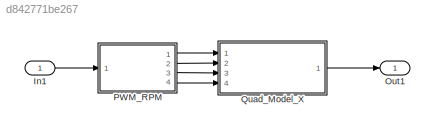
MODEL slx_d842771be267
KIND model
CONFIG AbsTol = auto
CONFIG FixedStep = auto
CONFIG MaxStep = auto
CONFIG MinStep = auto
CONFIG RelTol = 1e-3
CONFIG SampleTimeConstraint = Unconstrained
CONFIG Solver = ode45
CONFIG SolverMode = Auto
CONFIG SolverName = ode45
CONFIG StartTime = 0.0
CONFIG StopTime = 10.0
BLOCK [Inport] In1
  IconDisplay = Port number
BLOCK [Outport] Out1
  IconDisplay = Port number
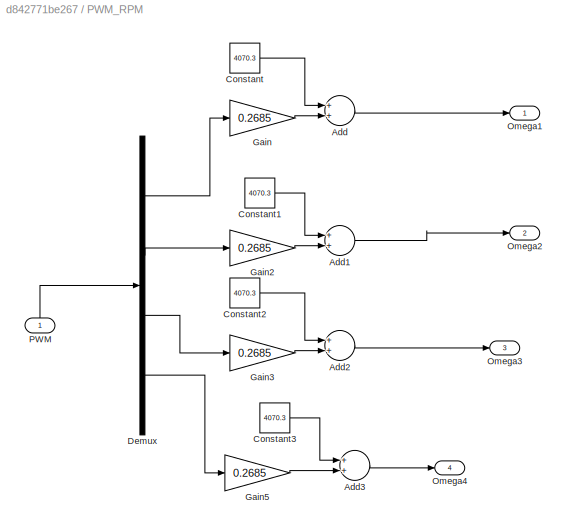
BLOCK [SubSystem] PWM_RPM
  Ports = [1, 4]
  RequestExecContextInheritance = off
  Variant = off
BLOCK [Sum] PWM_RPM/Add
  InputSameDT = off
  OutDataTypeStr = Inherit: Inherit via internal rule
  Ports = [2, 1]
  SaturateOnIntegerOverflow = off
BLOCK [Sum] PWM_RPM/Add1
  InputSameDT = off
  OutDataTypeStr = Inherit: Inherit via internal rule
  Ports = [2, 1]
  SaturateOnIntegerOverflow = off
BLOCK [Sum] PWM_RPM/Add2
  InputSameDT = off
  OutDataTypeStr = Inherit: Inherit via internal rule
  Ports = [2, 1]
  SaturateOnIntegerOverflow = off
BLOCK [Sum] PWM_RPM/Add3
  InputSameDT = off
  OutDataTypeStr = Inherit: Inherit via internal rule
  Ports = [2, 1]
  SaturateOnIntegerOverflow = off
BLOCK [Constant] PWM_RPM/Constant
  Value = 4070.3
BLOCK [Constant] PWM_RPM/Constant1
  Value = 4070.3
BLOCK [Constant] PWM_RPM/Constant2
  Value = 4070.3
BLOCK [Constant] PWM_RPM/Constant3
  Value = 4070.3
BLOCK [Demux] PWM_RPM/Demux
  DisplayOption = bar
  Ports = [1, 4]
BLOCK [Gain] PWM_RPM/Gain
  Gain = 0.2685
  OutDataTypeStr = Inherit: Inherit via internal rule
  ParamDataTypeStr = Inherit: Inherit via internal rule
  SaturateOnIntegerOverflow = off
BLOCK [Gain] PWM_RPM/Gain2
  Gain = 0.2685
  OutDataTypeStr = Inherit: Inherit via internal rule
  ParamDataTypeStr = Inherit: Inherit via internal rule
  SaturateOnIntegerOverflow = off
BLOCK [Gain] PWM_RPM/Gain3
  Gain = 0.2685
  OutDataTypeStr = Inherit: Inherit via internal rule
  ParamDataTypeStr = Inherit: Inherit via internal rule
  SaturateOnIntegerOverflow = off
BLOCK [Gain] PWM_RPM/Gain5
  Gain = 0.2685
  OutDataTypeStr = Inherit: Inherit via internal rule
  ParamDataTypeStr = Inherit: Inherit via internal rule
  SaturateOnIntegerOverflow = off
BLOCK [Outport] PWM_RPM/Omega1
  IconDisplay = Port number
BLOCK [Outport] PWM_RPM/Omega2
  IconDisplay = Port number
  Port = 2
BLOCK [Outport] PWM_RPM/Omega3
  IconDisplay = Port number
  Port = 3
BLOCK [Outport] PWM_RPM/Omega4
  IconDisplay = Port number
  Port = 4
BLOCK [Inport] PWM_RPM/PWM
  IconDisplay = Port number
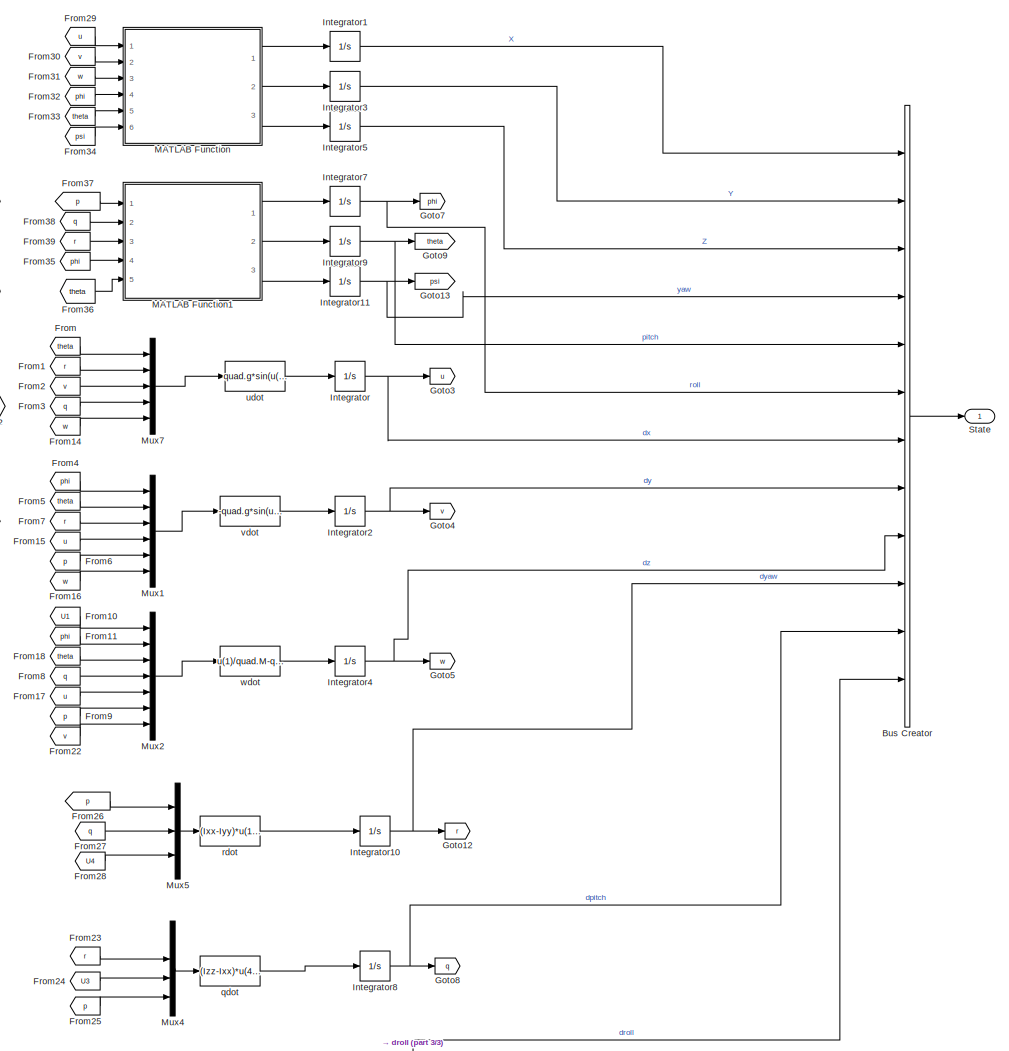
[diagram: Quad_Model_X - part 1/3, right side, full height]
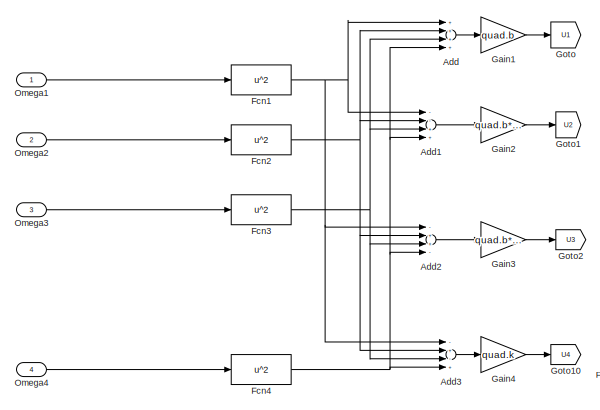
[diagram: Quad_Model_X - part 2/3, top left region]
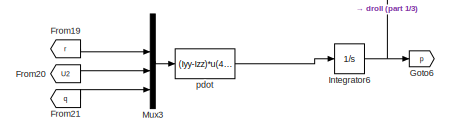
[diagram: Quad_Model_X - part 3/3, bottom center region]
BLOCK [SubSystem] Quad_Model_X
  Ports = [4, 1]
  RequestExecContextInheritance = off
  Variant = off
BLOCK [Sum] Quad_Model_X/Add
  InputSameDT = off
  Inputs = ++++
  OutDataTypeStr = Inherit: Inherit via internal rule
  Ports = [4, 1]
  SaturateOnIntegerOverflow = off
BLOCK [Sum] Quad_Model_X/Add1
  InputSameDT = off
  Inputs = --++
  OutDataTypeStr = Inherit: Inherit via internal rule
  Ports = [4, 1]
  SaturateOnIntegerOverflow = off
BLOCK [Sum] Quad_Model_X/Add2
  InputSameDT = off
  Inputs = -++-
  OutDataTypeStr = Inherit: Inherit via internal rule
  Ports = [4, 1]
  SaturateOnIntegerOverflow = off
BLOCK [Sum] Quad_Model_X/Add3
  InputSameDT = off
  Inputs = -+-+
  OutDataTypeStr = Inherit: Inherit via internal rule
  Ports = [4, 1]
  SaturateOnIntegerOverflow = off
BLOCK [BusCreator] Quad_Model_X/Bus Creator
  DisplayOption = bar
  InheritFromInputs = on
  Inputs = 12
  Ports = [12, 1]
BLOCK [Fcn] Quad_Model_X/Fcn1
  Expr = u^2
BLOCK [Fcn] Quad_Model_X/Fcn2
  Expr = u^2
BLOCK [Fcn] Quad_Model_X/Fcn3
  Expr = u^2
BLOCK [Fcn] Quad_Model_X/Fcn4
  Expr = u^2
BLOCK [From] Quad_Model_X/From
  GotoTag = theta
BLOCK [From] Quad_Model_X/From1
  GotoTag = r
BLOCK [From] Quad_Model_X/From10
  GotoTag = U1
BLOCK [From] Quad_Model_X/From11
  GotoTag = phi
BLOCK [From] Quad_Model_X/From14
  GotoTag = w
BLOCK [From] Quad_Model_X/From15
  GotoTag = u
BLOCK [From] Quad_Model_X/From16
  GotoTag = w
BLOCK [From] Quad_Model_X/From17
  GotoTag = u
BLOCK [From] Quad_Model_X/From18
  GotoTag = theta
BLOCK [From] Quad_Model_X/From19
  GotoTag = r
BLOCK [From] Quad_Model_X/From2
  GotoTag = v
BLOCK [From] Quad_Model_X/From20
  GotoTag = U2
BLOCK [From] Quad_Model_X/From21
  GotoTag = q
BLOCK [From] Quad_Model_X/From22
  GotoTag = v
BLOCK [From] Quad_Model_X/From23
  GotoTag = r
BLOCK [From] Quad_Model_X/From24
  GotoTag = U3
BLOCK [From] Quad_Model_X/From25
  GotoTag = p
BLOCK [From] Quad_Model_X/From26
  GotoTag = p
BLOCK [From] Quad_Model_X/From27
  GotoTag = q
BLOCK [From] Quad_Model_X/From28
  GotoTag = U4
BLOCK [From] Quad_Model_X/From29
  GotoTag = u
BLOCK [From] Quad_Model_X/From3
  GotoTag = q
BLOCK [From] Quad_Model_X/From30
  GotoTag = v
BLOCK [From] Quad_Model_X/From31
  GotoTag = w
BLOCK [From] Quad_Model_X/From32
  GotoTag = phi
BLOCK [From] Quad_Model_X/From33
  GotoTag = theta
BLOCK [From] Quad_Model_X/From34
  GotoTag = psi
BLOCK [From] Quad_Model_X/From35
  GotoTag = phi
BLOCK [From] Quad_Model_X/From36
  GotoTag = theta
BLOCK [From] Quad_Model_X/From37
  GotoTag = p
BLOCK [From] Quad_Model_X/From38
  GotoTag = q
BLOCK [From] Quad_Model_X/From39
  GotoTag = r
BLOCK [From] Quad_Model_X/From4
  GotoTag = phi
BLOCK [From] Quad_Model_X/From5
  GotoTag = theta
BLOCK [From] Quad_Model_X/From6
  GotoTag = p
BLOCK [From] Quad_Model_X/From7
  GotoTag = r
BLOCK [From] Quad_Model_X/From8
  GotoTag = q
BLOCK [From] Quad_Model_X/From9
  GotoTag = p
BLOCK [Gain] Quad_Model_X/Gain1
  Gain = quad.b
  OutDataTypeStr = Inherit: Inherit via internal rule
  ParamDataTypeStr = Inherit: Inherit via internal rule
  SaturateOnIntegerOverflow = off
BLOCK [Gain] Quad_Model_X/Gain2
  Gain = quad.b*quad.d*sin(pi/4)
  OutDataTypeStr = Inherit: Inherit via internal rule
  ParamDataTypeStr = Inherit: Inherit via internal rule
  SaturateOnIntegerOverflow = off
BLOCK [Gain] Quad_Model_X/Gain3
  Gain = quad.b*quad.d*sin(pi/4)
  OutDataTypeStr = Inherit: Inherit via internal rule
  ParamDataTypeStr = Inherit: Inherit via internal rule
  SaturateOnIntegerOverflow = off
BLOCK [Gain] Quad_Model_X/Gain4
  Gain = quad.k
  OutDataTypeStr = Inherit: Inherit via internal rule
  ParamDataTypeStr = Inherit: Inherit via internal rule
  SaturateOnIntegerOverflow = off
BLOCK [Goto] Quad_Model_X/Goto
  GotoTag = U1
BLOCK [Goto] Quad_Model_X/Goto1
  GotoTag = U2
BLOCK [Goto] Quad_Model_X/Goto10
  GotoTag = U4
BLOCK [Goto] Quad_Model_X/Goto12
  GotoTag = r
BLOCK [Goto] Quad_Model_X/Goto13
  GotoTag = psi
BLOCK [Goto] Quad_Model_X/Goto2
  GotoTag = U3
BLOCK [Goto] Quad_Model_X/Goto3
  GotoTag = u
BLOCK [Goto] Quad_Model_X/Goto4
  GotoTag = v
BLOCK [Goto] Quad_Model_X/Goto5
  GotoTag = w
BLOCK [Goto] Quad_Model_X/Goto6
  GotoTag = p
BLOCK [Goto] Quad_Model_X/Goto7
  GotoTag = phi
BLOCK [Goto] Quad_Model_X/Goto8
  GotoTag = q
BLOCK [Goto] Quad_Model_X/Goto9
  GotoTag = theta
BLOCK [Integrator] Quad_Model_X/Integrator
  Ports = [1, 1]
BLOCK [Integrator] Quad_Model_X/Integrator1
  Ports = [1, 1]
BLOCK [Integrator] Quad_Model_X/Integrator10
  Ports = [1, 1]
BLOCK [Integrator] Quad_Model_X/Integrator11
  Ports = [1, 1]
BLOCK [Integrator] Quad_Model_X/Integrator2
  Ports = [1, 1]
BLOCK [Integrator] Quad_Model_X/Integrator3
  Ports = [1, 1]
BLOCK [Integrator] Quad_Model_X/Integrator4
  Ports = [1, 1]
BLOCK [Integrator] Quad_Model_X/Integrator5
  Ports = [1, 1]
BLOCK [Integrator] Quad_Model_X/Integrator6
  Ports = [1, 1]
BLOCK [Integrator] Quad_Model_X/Integrator7
  Ports = [1, 1]
BLOCK [Integrator] Quad_Model_X/Integrator8
  Ports = [1, 1]
BLOCK [Integrator] Quad_Model_X/Integrator9
  Ports = [1, 1]
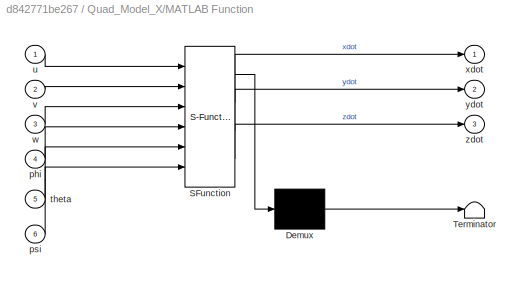
BLOCK [SubSystem] Quad_Model_X/MATLAB Function
  ErrorFcn = Stateflow.Translate.translate
  PermitHierarchicalResolution = ExplicitOnly
  Ports = [6, 3]
  RequestExecContextInheritance = off
  SFBlockType = MATLAB Function
  TreatAsAtomicUnit = on
  Variant = off
BLOCK [Demux] Quad_Model_X/MATLAB Function/ Demux 
  Outputs = 1
  Ports = [1, 1]
BLOCK [S-Function] Quad_Model_X/MATLAB Function/ SFunction 
  EnableBusSupport = off
  FunctionName = sf_sfun
  PortCounts = [6 4]
  Ports = [6, 4]
  SFunctionDeploymentMode = off
  Tag = Stateflow S-Function Quad_Model_X_backup 7
BLOCK [Terminator] Quad_Model_X/MATLAB Function/ Terminator 
BLOCK [Inport] Quad_Model_X/MATLAB Function/phi
  IconDisplay = Port number
  Port = 4
BLOCK [Inport] Quad_Model_X/MATLAB Function/psi
  IconDisplay = Port number
  Port = 6
BLOCK [Inport] Quad_Model_X/MATLAB Function/theta
  IconDisplay = Port number
  Port = 5
BLOCK [Inport] Quad_Model_X/MATLAB Function/u
  IconDisplay = Port number
BLOCK [Inport] Quad_Model_X/MATLAB Function/v
  IconDisplay = Port number
  Port = 2
BLOCK [Inport] Quad_Model_X/MATLAB Function/w
  IconDisplay = Port number
  Port = 3
BLOCK [Outport] Quad_Model_X/MATLAB Function/xdot
  IconDisplay = Port number
BLOCK [Outport] Quad_Model_X/MATLAB Function/ydot
  IconDisplay = Port number
  Port = 2
BLOCK [Outport] Quad_Model_X/MATLAB Function/zdot
  IconDisplay = Port number
  Port = 3
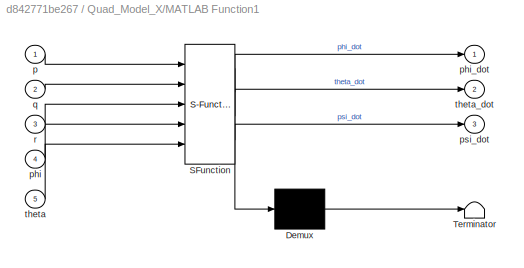
BLOCK [SubSystem] Quad_Model_X/MATLAB Function1
  ErrorFcn = Stateflow.Translate.translate
  PermitHierarchicalResolution = ExplicitOnly
  Ports = [5, 3]
  RequestExecContextInheritance = off
  SFBlockType = MATLAB Function
  TreatAsAtomicUnit = on
  Variant = off
BLOCK [Demux] Quad_Model_X/MATLAB Function1/ Demux 
  Outputs = 1
  Ports = [1, 1]
BLOCK [S-Function] Quad_Model_X/MATLAB Function1/ SFunction 
  EnableBusSupport = off
  FunctionName = sf_sfun
  PortCounts = [5 4]
  Ports = [5, 4]
  SFunctionDeploymentMode = off
  Tag = Stateflow S-Function Quad_Model_X_backup 8
BLOCK [Terminator] Quad_Model_X/MATLAB Function1/ Terminator 
BLOCK [Inport] Quad_Model_X/MATLAB Function1/p
  IconDisplay = Port number
BLOCK [Inport] Quad_Model_X/MATLAB Function1/phi
  IconDisplay = Port number
  Port = 4
BLOCK [Outport] Quad_Model_X/MATLAB Function1/phi_dot
  IconDisplay = Port number
BLOCK [Outport] Quad_Model_X/MATLAB Function1/psi_dot
  IconDisplay = Port number
  Port = 3
BLOCK [Inport] Quad_Model_X/MATLAB Function1/q
  IconDisplay = Port number
  Port = 2
BLOCK [Inport] Quad_Model_X/MATLAB Function1/r
  IconDisplay = Port number
  Port = 3
BLOCK [Inport] Quad_Model_X/MATLAB Function1/theta
  IconDisplay = Port number
  Port = 5
BLOCK [Outport] Quad_Model_X/MATLAB Function1/theta_dot
  IconDisplay = Port number
  Port = 2
BLOCK [Mux] Quad_Model_X/Mux1
  DisplayOption = bar
  Inputs = 6
  Ports = [6, 1]
BLOCK [Mux] Quad_Model_X/Mux2
  DisplayOption = bar
  Inputs = 7
  Ports = [7, 1]
BLOCK [Mux] Quad_Model_X/Mux3
  DisplayOption = bar
  Ports = [4, 1]
BLOCK [Mux] Quad_Model_X/Mux4
  DisplayOption = bar
  Ports = [4, 1]
BLOCK [Mux] Quad_Model_X/Mux5
  DisplayOption = bar
  Inputs = 3
  Ports = [3, 1]
BLOCK [Mux] Quad_Model_X/Mux7
  DisplayOption = bar
  Inputs = 5
  Ports = [5, 1]
BLOCK [Inport] Quad_Model_X/Omega1
  IconDisplay = Port number
BLOCK [Inport] Quad_Model_X/Omega2
  IconDisplay = Port number
  Port = 2
BLOCK [Inport] Quad_Model_X/Omega3
  IconDisplay = Port number
  Port = 3
BLOCK [Inport] Quad_Model_X/Omega4
  IconDisplay = Port number
  Port = 4
BLOCK [Outport] Quad_Model_X/State
  IconDisplay = Port number
BLOCK [Fcn] Quad_Model_X/pdot
  Expr = (Iyy-Izz)*u(4)*u(2)/Ixx+u(3)/Ixx
BLOCK [Fcn] Quad_Model_X/qdot
  Expr = (Izz-Ixx)*u(4)*u(2)/Iyy+u(3)/Iyy
BLOCK [Fcn] Quad_Model_X/rdot
  Expr = (Ixx-Iyy)*u(1)*u(2)/Izz+u(3)/Izz
BLOCK [Fcn] Quad_Model_X/udot 
  Expr = quad.g*sin(u(1))+u(2)*u(3)-u(4)*u(5)
BLOCK [Fcn] Quad_Model_X/vdot 
  Expr = -quad.g*sin(u(1))*cos(u(2))-u(3)*u(4)+u(5)*u(6)
BLOCK [Fcn] Quad_Model_X/wdot 
  Expr = u(1)/quad.M-quad.g*cos(u(2))*cos(u(3))+u(4)*u(5)-u(6)*u(7)
LINE In1:1 -> PWM_RPM:1
LINE PWM_RPM/Add1:1 -> PWM_RPM/Omega2:1
LINE PWM_RPM/Add2:1 -> PWM_RPM/Omega3:1
LINE PWM_RPM/Add3:1 -> PWM_RPM/Omega4:1
LINE PWM_RPM/Add:1 -> PWM_RPM/Omega1:1
LINE PWM_RPM/Constant1:1 -> PWM_RPM/Add1:1
LINE PWM_RPM/Constant2:1 -> PWM_RPM/Add2:1
LINE PWM_RPM/Constant3:1 -> PWM_RPM/Add3:1
LINE PWM_RPM/Constant:1 -> PWM_RPM/Add:1
LINE PWM_RPM/Demux:1 -> PWM_RPM/Gain:1
LINE PWM_RPM/Demux:2 -> PWM_RPM/Gain2:1
LINE PWM_RPM/Demux:3 -> PWM_RPM/Gain3:1
LINE PWM_RPM/Demux:4 -> PWM_RPM/Gain5:1
LINE PWM_RPM/Gain2:1 -> PWM_RPM/Add1:2
LINE PWM_RPM/Gain3:1 -> PWM_RPM/Add2:2
LINE PWM_RPM/Gain5:1 -> PWM_RPM/Add3:2
LINE PWM_RPM/Gain:1 -> PWM_RPM/Add:2
LINE PWM_RPM/PWM:1 -> PWM_RPM/Demux:1
LINE PWM_RPM:1 -> Quad_Model_X:1
LINE PWM_RPM:2 -> Quad_Model_X:2
LINE PWM_RPM:3 -> Quad_Model_X:3
LINE PWM_RPM:4 -> Quad_Model_X:4
LINE Quad_Model_X/Add1:1 -> Quad_Model_X/Gain2:1
LINE Quad_Model_X/Add2:1 -> Quad_Model_X/Gain3:1
LINE Quad_Model_X/Add3:1 -> Quad_Model_X/Gain4:1
LINE Quad_Model_X/Add:1 -> Quad_Model_X/Gain1:1
LINE Quad_Model_X/Bus Creator:1 -> Quad_Model_X/State:1
NET Quad_Model_X/Fcn1:1 -> Quad_Model_X/Add1:1, Quad_Model_X/Add2:1, Quad_Model_X/Add3:1, Quad_Model_X/Add:1
NET Quad_Model_X/Fcn2:1 -> Quad_Model_X/Add1:2, Quad_Model_X/Add2:2, Quad_Model_X/Add3:2, Quad_Model_X/Add:2
NET Quad_Model_X/Fcn3:1 -> Quad_Model_X/Add1:3, Quad_Model_X/Add2:3, Quad_Model_X/Add3:3, Quad_Model_X/Add:3
NET Quad_Model_X/Fcn4:1 -> Quad_Model_X/Add1:4, Quad_Model_X/Add2:4, Quad_Model_X/Add3:4, Quad_Model_X/Add:4
LINE Quad_Model_X/From10:1 -> Quad_Model_X/Mux2:1
LINE Quad_Model_X/From11:1 -> Quad_Model_X/Mux2:2
LINE Quad_Model_X/From14:1 -> Quad_Model_X/Mux7:5
LINE Quad_Model_X/From15:1 -> Quad_Model_X/Mux1:4
LINE Quad_Model_X/From16:1 -> Quad_Model_X/Mux1:6
LINE Quad_Model_X/From17:1 -> Quad_Model_X/Mux2:5
LINE Quad_Model_X/From18:1 -> Quad_Model_X/Mux2:3
LINE Quad_Model_X/From19:1 -> Quad_Model_X/Mux3:2
LINE Quad_Model_X/From1:1 -> Quad_Model_X/Mux7:2
LINE Quad_Model_X/From20:1 -> Quad_Model_X/Mux3:3
LINE Quad_Model_X/From21:1 -> Quad_Model_X/Mux3:4
LINE Quad_Model_X/From22:1 -> Quad_Model_X/Mux2:7
LINE Quad_Model_X/From23:1 -> Quad_Model_X/Mux4:2
LINE Quad_Model_X/From24:1 -> Quad_Model_X/Mux4:3
LINE Quad_Model_X/From25:1 -> Quad_Model_X/Mux4:4
LINE Quad_Model_X/From26:1 -> Quad_Model_X/Mux5:1
LINE Quad_Model_X/From27:1 -> Quad_Model_X/Mux5:2
LINE Quad_Model_X/From28:1 -> Quad_Model_X/Mux5:3
LINE Quad_Model_X/From29:1 -> Quad_Model_X/MATLAB Function:1
LINE Quad_Model_X/From2:1 -> Quad_Model_X/Mux7:3
LINE Quad_Model_X/From30:1 -> Quad_Model_X/MATLAB Function:2
LINE Quad_Model_X/From31:1 -> Quad_Model_X/MATLAB Function:3
LINE Quad_Model_X/From32:1 -> Quad_Model_X/MATLAB Function:4
LINE Quad_Model_X/From33:1 -> Quad_Model_X/MATLAB Function:5
LINE Quad_Model_X/From34:1 -> Quad_Model_X/MATLAB Function:6
LINE Quad_Model_X/From35:1 -> Quad_Model_X/MATLAB Function1:4
LINE Quad_Model_X/From36:1 -> Quad_Model_X/MATLAB Function1:5
LINE Quad_Model_X/From37:1 -> Quad_Model_X/MATLAB Function1:1
LINE Quad_Model_X/From38:1 -> Quad_Model_X/MATLAB Function1:2
LINE Quad_Model_X/From39:1 -> Quad_Model_X/MATLAB Function1:3
LINE Quad_Model_X/From3:1 -> Quad_Model_X/Mux7:4
LINE Quad_Model_X/From4:1 -> Quad_Model_X/Mux1:1
LINE Quad_Model_X/From5:1 -> Quad_Model_X/Mux1:2
LINE Quad_Model_X/From6:1 -> Quad_Model_X/Mux1:5
LINE Quad_Model_X/From7:1 -> Quad_Model_X/Mux1:3
LINE Quad_Model_X/From8:1 -> Quad_Model_X/Mux2:4
LINE Quad_Model_X/From9:1 -> Quad_Model_X/Mux2:6
LINE Quad_Model_X/From:1 -> Quad_Model_X/Mux7:1
LINE Quad_Model_X/Gain1:1 -> Quad_Model_X/Goto:1
LINE Quad_Model_X/Gain2:1 -> Quad_Model_X/Goto1:1
LINE Quad_Model_X/Gain3:1 -> Quad_Model_X/Goto2:1
LINE Quad_Model_X/Gain4:1 -> Quad_Model_X/Goto10:1
NET Quad_Model_X/Integrator10:1 -> Quad_Model_X/Bus Creator:10, Quad_Model_X/Goto12:1
NET Quad_Model_X/Integrator11:1 -> Quad_Model_X/Bus Creator:4, Quad_Model_X/Goto13:1
LINE Quad_Model_X/Integrator1:1 -> Quad_Model_X/Bus Creator:1
NET Quad_Model_X/Integrator2:1 -> Quad_Model_X/Bus Creator:8, Quad_Model_X/Goto4:1
LINE Quad_Model_X/Integrator3:1 -> Quad_Model_X/Bus Creator:2
NET Quad_Model_X/Integrator4:1 -> Quad_Model_X/Bus Creator:9, Quad_Model_X/Goto5:1
LINE Quad_Model_X/Integrator5:1 -> Quad_Model_X/Bus Creator:3
NET Quad_Model_X/Integrator6:1 -> Quad_Model_X/Bus Creator:12, Quad_Model_X/Goto6:1
NET Quad_Model_X/Integrator7:1 -> Quad_Model_X/Bus Creator:6, Quad_Model_X/Goto7:1
NET Quad_Model_X/Integrator8:1 -> Quad_Model_X/Bus Creator:11, Quad_Model_X/Goto8:1
NET Quad_Model_X/Integrator9:1 -> Quad_Model_X/Bus Creator:5, Quad_Model_X/Goto9:1
NET Quad_Model_X/Integrator:1 -> Quad_Model_X/Bus Creator:7, Quad_Model_X/Goto3:1
LINE Quad_Model_X/MATLAB Function1:1 -> Quad_Model_X/Integrator7:1
LINE Quad_Model_X/MATLAB Function1:2 -> Quad_Model_X/Integrator9:1
LINE Quad_Model_X/MATLAB Function1:3 -> Quad_Model_X/Integrator11:1
LINE Quad_Model_X/MATLAB Function:1 -> Quad_Model_X/Integrator1:1
LINE Quad_Model_X/MATLAB Function:2 -> Quad_Model_X/Integrator3:1
LINE Quad_Model_X/MATLAB Function:3 -> Quad_Model_X/Integrator5:1
LINE Quad_Model_X/Mux1:1 -> Quad_Model_X/vdot :1
LINE Quad_Model_X/Mux2:1 -> Quad_Model_X/wdot :1
LINE Quad_Model_X/Mux3:1 -> Quad_Model_X/pdot:1
LINE Quad_Model_X/Mux4:1 -> Quad_Model_X/qdot:1
LINE Quad_Model_X/Mux5:1 -> Quad_Model_X/rdot:1
LINE Quad_Model_X/Mux7:1 -> Quad_Model_X/udot :1
LINE Quad_Model_X/Omega1:1 -> Quad_Model_X/Fcn1:1
LINE Quad_Model_X/Omega2:1 -> Quad_Model_X/Fcn2:1
LINE Quad_Model_X/Omega3:1 -> Quad_Model_X/Fcn3:1
LINE Quad_Model_X/Omega4:1 -> Quad_Model_X/Fcn4:1
LINE Quad_Model_X/pdot:1 -> Quad_Model_X/Integrator6:1
LINE Quad_Model_X/qdot:1 -> Quad_Model_X/Integrator8:1
LINE Quad_Model_X/rdot:1 -> Quad_Model_X/Integrator10:1
LINE Quad_Model_X/udot :1 -> Quad_Model_X/Integrator:1
LINE Quad_Model_X/vdot :1 -> Quad_Model_X/Integrator2:1
LINE Quad_Model_X/wdot :1 -> Quad_Model_X/Integrator4:1
LINE Quad_Model_X:1 -> Out1:1
note: NET lines group one-source signal fan-out (src -> all destinations, sorted); 1:1 wires keep LINE
CHART Quad_Model_X/MATLAB Function states=1 transitions=1
  STATE_LABEL 'eML_blk_kernel()'
  STATE_LABEL 'SCRIPT:\nfunction [xdot,ydot,zdot] = fcn(u,v,w,phi,theta,psi)\n\nxdot= u*cos(theta)*cos(psi)+v*(sin(phi)*sin(theta)*cos(psi)-cos(phi)*sin(psi))+w*(cos(phi)*sin(theta)*cos(psi)+sin(phi)*sin(psi));\n\nydot= u*cos(theta)*sin(psi)+v*(sin(phi)*sin(theta)*sin(psi)+cos(phi)*cos(psi))+w*(cos(phi)*sin(theta)*sin(psi)-sin(phi)*cos(psi));\n\nzdot = -u*sin(theta)+v*sin(phi)*cos(theta)+w*cos(phi)*cos(theta);\nend'
CHART Quad_Model_X/MATLAB Function1 states=1 transitions=1
  STATE_LABEL 'eML_blk_kernel()'
  STATE_LABEL 'SCRIPT:\nfunction [phi_dot,theta_dot,psi_dot] = fcn(p,q,r,phi,theta)\nphi_dot = p+q*tan(theta)*sin(phi)+r*tan(theta)*cos(phi);\ntheta_dot = q*cos(phi)-r*sin(phi);\npsi_dot = q*sin(phi)/cos(theta)+r*cos(phi)/cos(theta);\nend'
